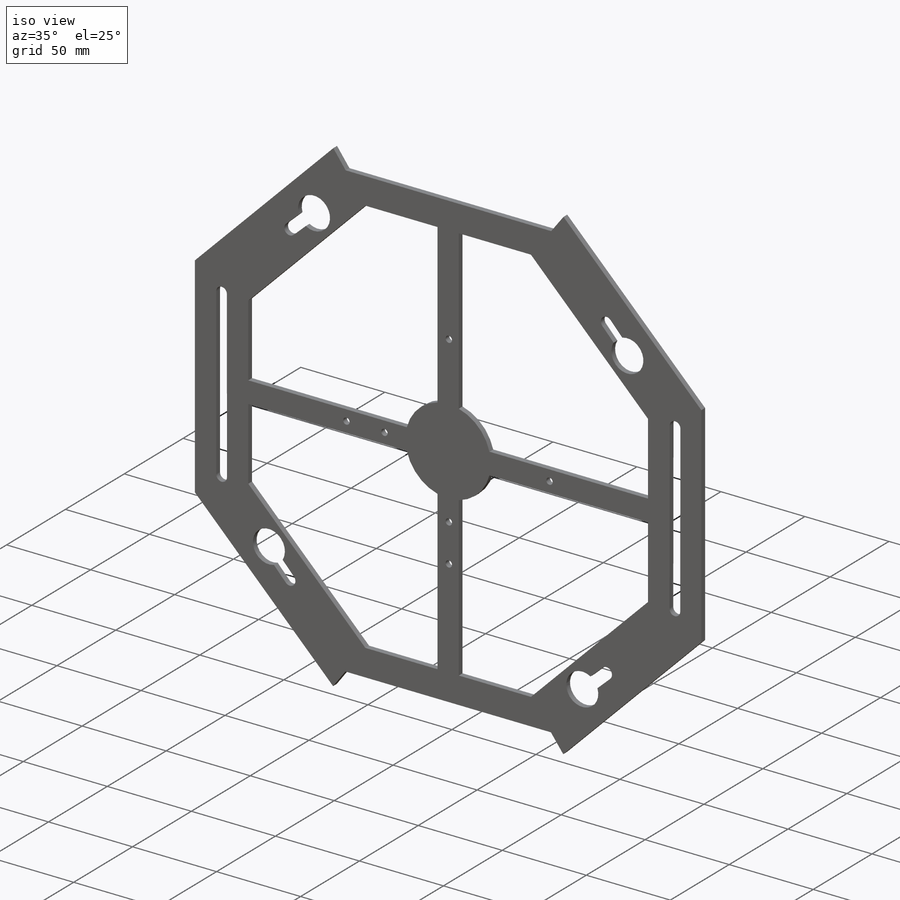
[diagram: iso view]
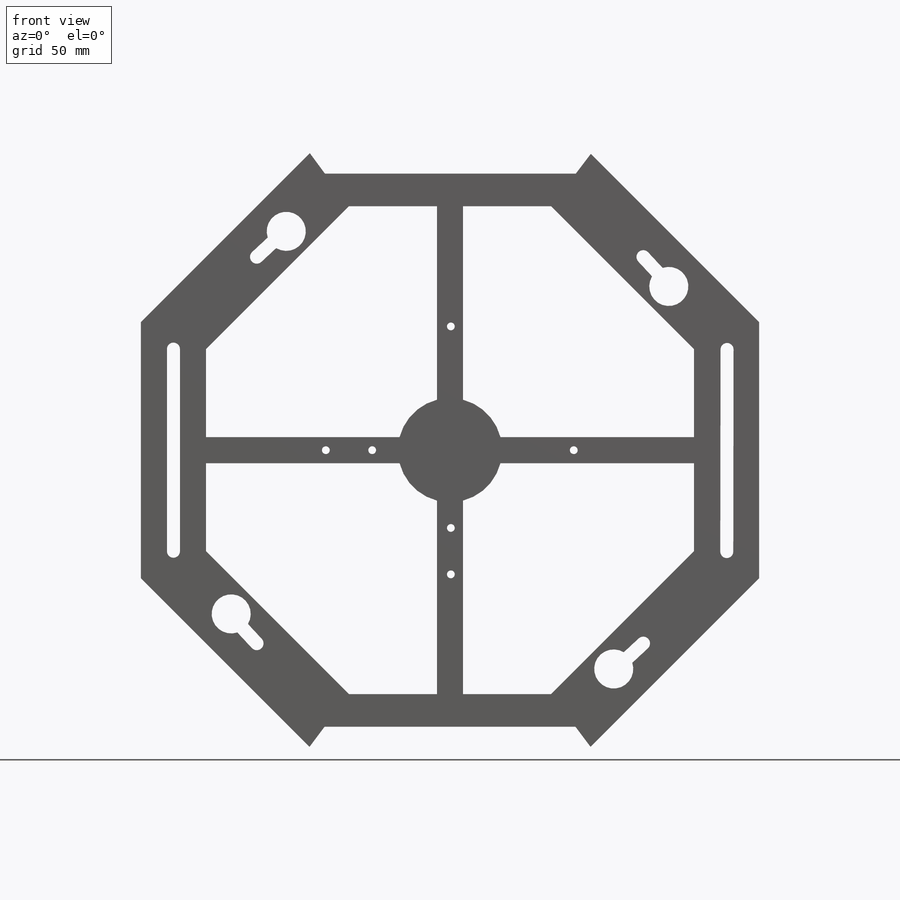
[diagram: front view]
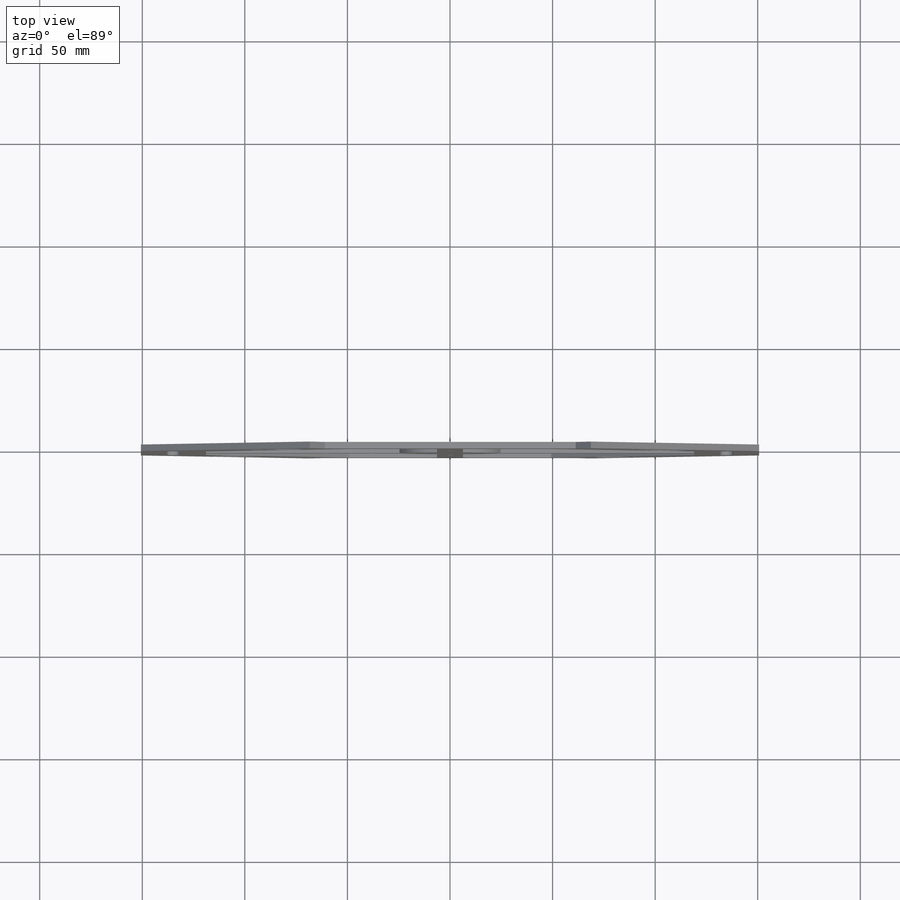
[diagram: top view]
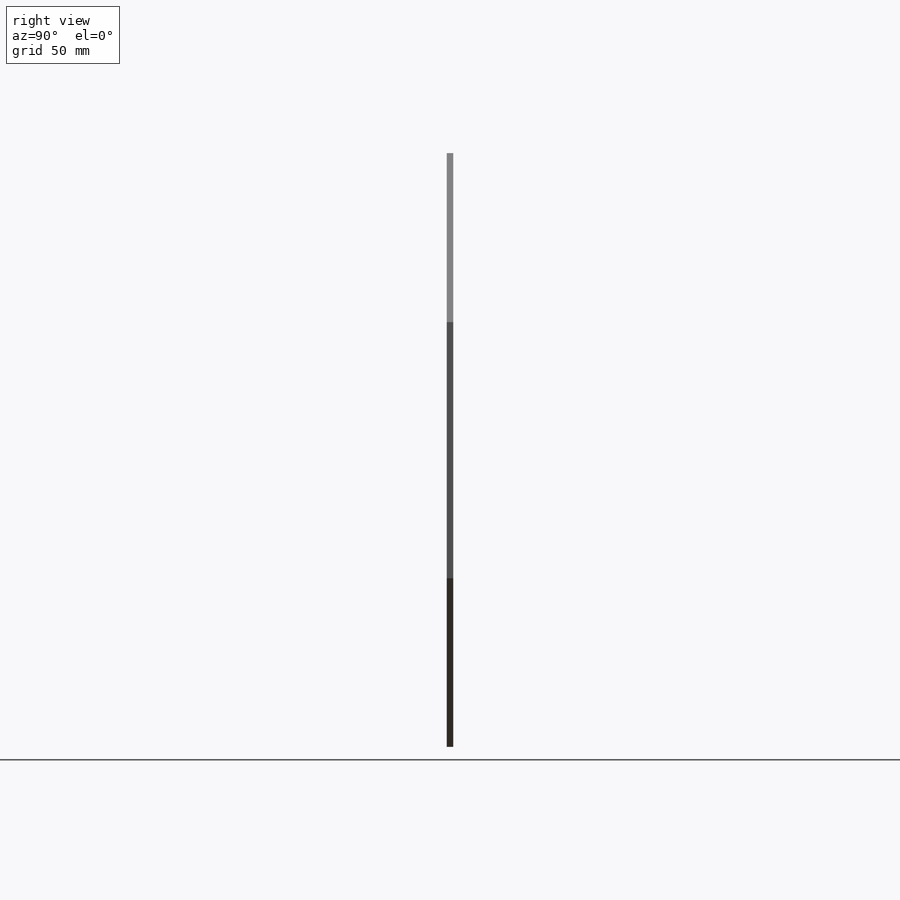
[diagram: right view]
SOLIDWORKS PART (.sldprt)
format: sldprt  version: not decoded by parser v0  size: 1,306,624 bytes
history: native  units: mm
features: sketch x18, cut_extrude x9, extrude x7, material x1, hole x1 (+11 scaffold rows collapsed)
feature tree (47):
  scaffold x11  (default folders/planes/origin — collapsed)
  material  "6061-T6 (SS)"
  sketch  "Sketch1"  dims[c1.D2=~284.012352mm c1.D1=114.3mm c2.D2=12.7mm]
  extrude  "Boss-Extrude1"  Depth=3.175mm
  sketch  "Sketch2"  dims[D1=9.525mm D2=6.604mm]
  extrude  "Boss-Extrude2"  Depth=3.175mm
  sketch  "Sketch4"  dims[D1=50.8mm]
  sketch  "Sketch5"  dims[D1=12.7mm D2=12.7mm D3=12.7mm]
  extrude  "Boss-Extrude3"  Depth=3.175mm
  sketch  "Sketch9"  dims[D1=19.05mm]
  extrude  "Boss-Extrude4"  Depth=3.175mm
  sketch  "Sketch10"  dims[D1=9.525mm D2=6.604mm]
  cut_extrude  "Cut-Extrude2"  Depth=3.175mm
  sketch  "Sketch11"  dims[D1=6.604mm D2=6.604mm D3=6.604mm D4=~38.602384mm]
  cut_extrude  "Cut-Extrude3"  Depth=3.175mm
  sketch  "Sketch12"  dims[D1=12.7mm D2=12.7mm]
  extrude  "Boss-Extrude6"  Depth=3.175mm
  hole  "#6 Clearance Hole1"  Diameter=3.7973mm Depth=25.4mm
  sketch  "Sketch14"  dims[c1.D1=60.325mm c1.D2=98.2472mm c1.D3=~22.60092mm c1.D4=60.325mm c1.D5=98.2472mm c1.D6=~22.60092mm c2.D2=98.2472mm]
  sketch  "Sketch13"  dims[hole-wizard template sketch: 50 standard entries collapsed; hole parameters above]
  sketch  "Sketch15"  dims[D5=2.54mm D1=146.05mm D2=234.95mm D3=2.54mm D4=2.54mm D6=38.1mm D7=25.4mm D8=38.1mm]
  cut_extrude  "Cut-Extrude4"  Depth=3.175mm
  sketch  "Sketch16"  dims[D1=25.4mm D2=38.1mm D3=19.05mm D4=38.1mm D5=25.4mm D6=19.05mm]
  cut_extrude  "Cut-Extrude5"  Depth=4.7625mm
  sketch  "Sketch17"  dims[D1=146.05mm D2=146.05mm]
  cut_extrude  "Cut-Extrude8"  Depth=4.7625mm
  extrude  "Boss-Extrude7"  Depth=3.175mm
  sketch  "Sketch18"  dims[c1.D1=~4.087308mm c2.D1=45.0deg c3.D1=12.7mm c3.D2=19.05mm c3.D5=45.0deg c4.D5=19.05mm c4.D8=135.0deg c4.D10=19.05mm c4.D11=45.0deg c5.D11=19.05mm c5.D1=19.05mm c6.D1=~8.193726deg c6.D3=3.302mm c6.D4=3.302mm c6.D6=3.302mm c6.D7=3.302mm c6.D8=3.302mm c6.D9=3.302mm c6.D12=3.302mm c6.D13=3.302mm]
  cut_extrude  "Cut-Extrude9"  Depth=3.175mm
  sketch  "Sketch19"  dims[c1.D1=12.7mm c1.D2=12.7mm c1.D3=12.7mm c1.D4=12.7mm c2.D2=19.05mm c2.D1=19.05mm c2.D3=19.05mm c2.D4=19.05mm c2.D5=11.1125mm]
  cut_extrude  "Cut-Extrude10"  Depth=3.175mm
  sketch  "Sketch20"  dims[D1=76.2mm D2=76.2mm D3=3.175mm D4=3.175mm D5=3.175mm D6=3.175mm]
  extrude  "Boss-Extrude8"  Depth=3.175mm
  sketch  "Sketch21"
  cut_extrude  "Cut-Extrude11"  Depth=3.175mm
  sketch  "Sketch22"  dims[D1=3.175mm D2=3.175mm]
  cut_extrude  "Cut-Extrude12"  [1 undecoded]
decode coverage: 33 of 35 modeling features carry decoded parameters
note: ~ marks probable driven/reference dimensions
note: 1 parameter value undecoded
note: suppression state not decoded; provenance and decode notes live in map.json
